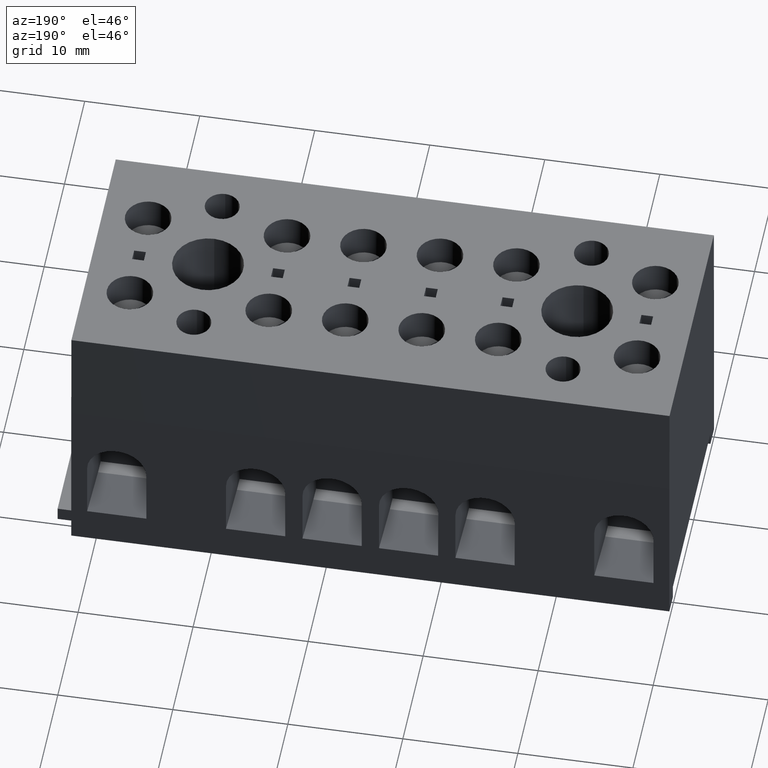
[diagram: clean part render]
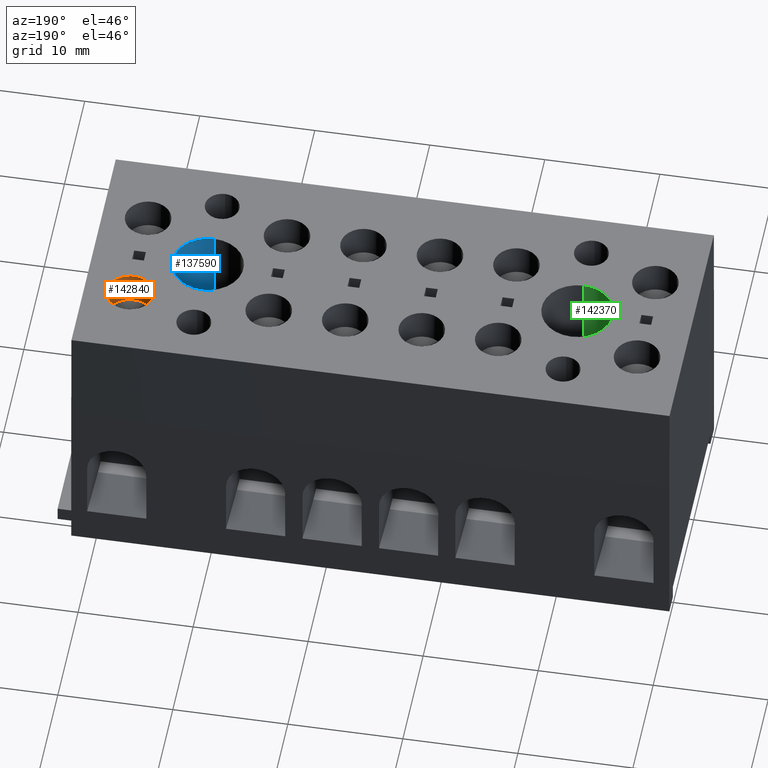
[diagram: same view with three faces highlighted in distinct colors, each labeled with its STEP entity id]
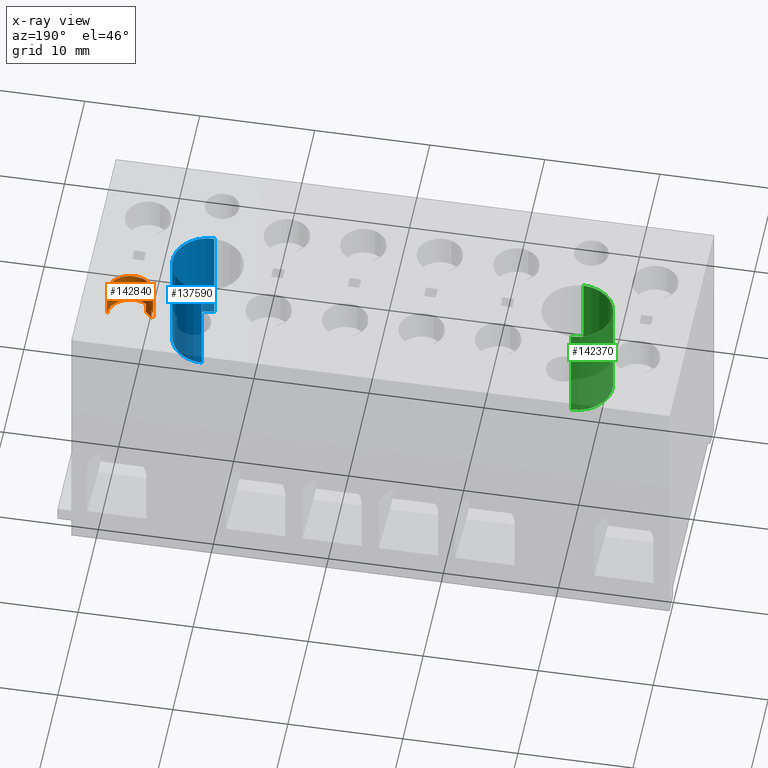
[diagram: x-ray of the same camera — body ghosted, the three highlighted faces saturated]
A machine part, auxiliary view with three faces highlighted in distinct colors.
The next image is the same camera in x-ray (body ghosted, the three faces saturated) — at least one of them is partly hidden behind the body in this view.
Their STEP definitions:

[orange] entity #142840 — the highlighted cylindrical surface (edge-blend (fillet) strip) has radius 2 mm, axis along (0, 0, -1).
#6770=CARTESIAN_POINT('',(-131.932337741337,-171.978083115857,15.5));
#6780=DIRECTION('',(0.,-1.,0.));
#6790=DIRECTION('',(1.,0.,0.));
#6800=AXIS2_PLACEMENT_3D('',#6770,#6780,#6790);
#6810=CIRCLE('',#6800,2.);
#6820=CARTESIAN_POINT('',(-129.932337741337,-171.978083115857,15.5));
#6830=VERTEX_POINT('',#6820);
#6840=CARTESIAN_POINT('',(-133.932337741337,-171.978083115857,15.5));
#6850=VERTEX_POINT('',#6840);
#6880=CARTESIAN_POINT('',(-130.829539807756,-171.978083115857,
13.8315166414703));
#6890=VERTEX_POINT('',#6880);
#6900=EDGE_CURVE('',#6890,#6830,#6810,.T.);
#6920=EDGE_CURVE('',#6850,#6890,#6810,.T.);
#131850=CARTESIAN_POINT('',(-129.932337741337,-174.878083115857,15.5));
#131860=DIRECTION('',(0.,-1.,0.));
#131870=VECTOR('',#131860,1.);
#131880=LINE('',#131850,#131870);
#131890=CARTESIAN_POINT('',(-129.932337741337,-174.878083115857,15.5));
#131900=VERTEX_POINT('',#131890);
#131910=EDGE_CURVE('',#6830,#131900,#131880,.T.);
#131940=CARTESIAN_POINT('',(-133.932337741337,-174.878083115857,15.5));
#131950=DIRECTION('',(0.,-1.,0.));
#131960=VECTOR('',#131950,1.);
#131970=LINE('',#131940,#131960);
#131980=CARTESIAN_POINT('',(-133.932337741337,-174.878083115857,15.5));
#131990=VERTEX_POINT('',#131980);
#132000=EDGE_CURVE('',#6850,#131990,#131970,.T.);
#132020=CARTESIAN_POINT('',(-131.932337741337,-174.878083115857,15.5));
#132030=DIRECTION('',(0.,-1.,0.));
#132040=DIRECTION('',(1.,0.,0.));
#132050=AXIS2_PLACEMENT_3D('',#132020,#132030,#132040);
#132060=CIRCLE('',#132050,2.);
#132530=CARTESIAN_POINT('',(-131.932337741337,-175.878083115857,
15.5000000000001));
#132540=DIRECTION('',(0.,1.,0.));
#132550=DIRECTION('',(-0.707106781186547,0.,-0.707106781186548));
#132560=AXIS2_PLACEMENT_3D('',#132530,#132540,#132550);
#132570=CIRCLE('',#132560,2.);
#132580=CARTESIAN_POINT('',(-130.263854382807,-175.878083115857,
14.3972020664195));
#132590=VERTEX_POINT('',#132580);
#132600=CARTESIAN_POINT('',(-130.829539807756,-175.878083115857,
13.8315166414703));
#132610=VERTEX_POINT('',#132600);
#132620=EDGE_CURVE('',#132590,#132610,#132570,.T.);
#132930=CARTESIAN_POINT('',(-130.829539807756,-174.878083115857,
13.8315166414703));
#132940=VERTEX_POINT('',#132930);
#132950=EDGE_CURVE('',#131990,#132940,#132060,.T.);
#133180=CARTESIAN_POINT('',(-130.829539807757,-175.878083115857,
13.8315166414703));
#133190=DIRECTION('',(0.,1.,0.));
#133200=VECTOR('',#133190,1.);
#133210=LINE('',#133180,#133200);
#133220=EDGE_CURVE('',#132610,#132940,#133210,.T.);
#133440=CARTESIAN_POINT('',(-130.263854382807,-175.878083115857,
14.3972020664196));
#133450=DIRECTION('',(0.,1.,0.));
#133460=VECTOR('',#133450,1.);
#133470=LINE('',#133440,#133460);
#133480=CARTESIAN_POINT('',(-130.263854382807,-174.878083115857,
14.3972020664195));
#133490=VERTEX_POINT('',#133480);
#133500=EDGE_CURVE('',#132590,#133490,#133470,.T.);
#133690=EDGE_CURVE('',#133490,#131900,#132060,.T.);
#142680=CARTESIAN_POINT('',(-131.932337741337,-174.878083115857,15.5));
#142690=DIRECTION('',(0.,-1.,0.));
#142700=DIRECTION('',(1.,0.,0.));
#142710=AXIS2_PLACEMENT_3D('',#142680,#142690,#142700);
#142720=CYLINDRICAL_SURFACE('',#142710,2.);
#142730=ORIENTED_EDGE('',*,*,#6900,.F.);
#142740=ORIENTED_EDGE('',*,*,#131910,.F.);
#142750=ORIENTED_EDGE('',*,*,#133690,.T.);
#142760=ORIENTED_EDGE('',*,*,#133500,.T.);
#142770=ORIENTED_EDGE('',*,*,#132620,.F.);
#142780=ORIENTED_EDGE('',*,*,#133220,.F.);
#142790=ORIENTED_EDGE('',*,*,#132950,.T.);
#142800=ORIENTED_EDGE('',*,*,#132000,.T.);
#142810=ORIENTED_EDGE('',*,*,#6920,.F.);
#142820=EDGE_LOOP('',(#142810,#142800,#142790,#142780,#142770,#142760,
#142750,#142740,#142730));
#142830=FACE_OUTER_BOUND('',#142820,.T.);
#142840=ADVANCED_FACE('',(#142830),#142720,.F.);

[blue] entity #137590 — the highlighted cylindrical surface (edge-blend (fillet) strip) has radius 3.0814 mm, axis along (0, 0, 1).
#7490=CARTESIAN_POINT('',(-125.932337741337,-171.978083115857,11.));
#7500=DIRECTION('',(0.,1.,0.));
#7510=DIRECTION('',(0.,0.,1.));
#7520=AXIS2_PLACEMENT_3D('',#7490,#7500,#7510);
#7530=CIRCLE('',#7520,3.08141605413437);
#7540=CARTESIAN_POINT('',(-125.932337741337,-171.978083115857,
14.0814160541344));
#7550=VERTEX_POINT('',#7540);
#7560=CARTESIAN_POINT('',(-125.932337741337,-171.978083115857,
7.91858394586565));
#7570=VERTEX_POINT('',#7560);
#7600=EDGE_CURVE('',#7570,#7550,#7530,.T.);
#137280=CARTESIAN_POINT('',(-125.932337741337,-180.978083115857,11.));
#137290=DIRECTION('',(0.,1.,0.));
#137300=DIRECTION('',(0.,0.,1.));
#137310=AXIS2_PLACEMENT_3D('',#137280,#137290,#137300);
#137320=CYLINDRICAL_SURFACE('',#137310,3.08141605413437);
#137330=CARTESIAN_POINT('',(-125.932337741337,-180.978083115857,
14.0814160541344));
#137340=DIRECTION('',(0.,1.,0.));
#137350=VECTOR('',#137340,1.);
#137360=LINE('',#137330,#137350);
#137370=CARTESIAN_POINT('',(-125.932337741337,-180.978083115857,
14.0814160541344));
#137380=VERTEX_POINT('',#137370);
#137390=EDGE_CURVE('',#137380,#7550,#137360,.T.);
#137400=ORIENTED_EDGE('',*,*,#137390,.F.);
#137410=ORIENTED_EDGE('',*,*,#7600,.T.);
#137420=CARTESIAN_POINT('',(-125.932337741337,-180.978083115857,
7.91858394586565));
#137430=DIRECTION('',(0.,1.,0.));
#137440=VECTOR('',#137430,1.);
#137450=LINE('',#137420,#137440);
#137460=CARTESIAN_POINT('',(-125.932337741337,-180.978083115857,
7.91858394586565));
#137470=VERTEX_POINT('',#137460);
#137480=EDGE_CURVE('',#137470,#7570,#137450,.T.);
#137490=ORIENTED_EDGE('',*,*,#137480,.T.);
#137500=CARTESIAN_POINT('',(-125.932337741337,-180.978083115857,11.));
#137510=DIRECTION('',(0.,1.,0.));
#137520=DIRECTION('',(0.,0.,1.));
#137530=AXIS2_PLACEMENT_3D('',#137500,#137510,#137520);
#137540=CIRCLE('',#137530,3.08141605413437);
#137550=EDGE_CURVE('',#137470,#137380,#137540,.T.);
#137560=ORIENTED_EDGE('',*,*,#137550,.F.);
#137570=EDGE_LOOP('',(#137560,#137490,#137410,#137400));
#137580=FACE_OUTER_BOUND('',#137570,.T.);
#137590=ADVANCED_FACE('',(#137580),#137320,.F.);

[green] entity #142370 — the highlighted cylindrical surface (edge-blend (fillet) strip) has radius 3.0814 mm, axis along (0, 0, 1).
#4580=CARTESIAN_POINT('',(-93.8323377413369,-171.978083115857,11.));
#4590=DIRECTION('',(0.,1.,0.));
#4600=DIRECTION('',(0.,0.,1.));
#4610=AXIS2_PLACEMENT_3D('',#4580,#4590,#4600);
#4620=CIRCLE('',#4610,3.08141605413437);
#4630=CARTESIAN_POINT('',(-93.8323377413369,-171.978083115857,
14.0814160541344));
#4640=VERTEX_POINT('',#4630);
#4650=CARTESIAN_POINT('',(-93.8323377413369,-171.978083115857,
7.91858394586565));
#4660=VERTEX_POINT('',#4650);
#4670=EDGE_CURVE('',#4640,#4660,#4620,.T.);
#81440=CARTESIAN_POINT('',(-93.8323377413369,-180.978083115857,
14.0814160541344));
#81450=DIRECTION('',(0.,1.,0.));
#81460=VECTOR('',#81450,1.);
#81470=LINE('',#81440,#81460);
#81480=CARTESIAN_POINT('',(-93.8323377413369,-180.978083115857,
14.0814160541344));
#81490=VERTEX_POINT('',#81480);
#81500=EDGE_CURVE('',#81490,#4640,#81470,.T.);
#81530=CARTESIAN_POINT('',(-93.8323377413369,-180.978083115857,
7.91858394586565));
#81540=DIRECTION('',(0.,1.,0.));
#81550=VECTOR('',#81540,1.);
#81560=LINE('',#81530,#81550);
#81570=CARTESIAN_POINT('',(-93.8323377413369,-180.978083115857,
7.91858394586565));
#81580=VERTEX_POINT('',#81570);
#81590=EDGE_CURVE('',#81580,#4660,#81560,.T.);
#81610=CARTESIAN_POINT('',(-93.8323377413369,-180.978083115857,11.));
#81620=DIRECTION('',(0.,1.,0.));
#81630=DIRECTION('',(0.,0.,1.));
#81640=AXIS2_PLACEMENT_3D('',#81610,#81620,#81630);
#81650=CIRCLE('',#81640,3.08141605413437);
#81830=EDGE_CURVE('',#81490,#81580,#81650,.T.);
#142260=CARTESIAN_POINT('',(-93.8323377413369,-180.978083115857,11.));
#142270=DIRECTION('',(0.,1.,0.));
#142280=DIRECTION('',(0.,0.,1.));
#142290=AXIS2_PLACEMENT_3D('',#142260,#142270,#142280);
#142300=CYLINDRICAL_SURFACE('',#142290,3.08141605413437);
#142310=ORIENTED_EDGE('',*,*,#81830,.F.);
#142320=ORIENTED_EDGE('',*,*,#81590,.F.);
#142330=ORIENTED_EDGE('',*,*,#4670,.T.);
#142340=ORIENTED_EDGE('',*,*,#81500,.T.);
#142350=EDGE_LOOP('',(#142340,#142330,#142320,#142310));
#142360=FACE_OUTER_BOUND('',#142350,.T.);
#142370=ADVANCED_FACE('',(#142360),#142300,.F.);